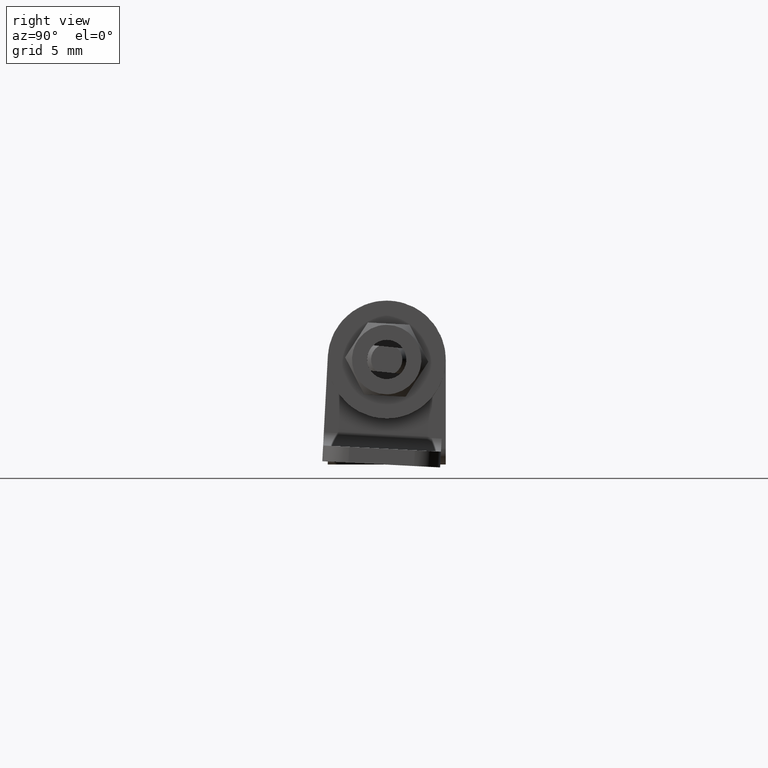
[diagram: clean part render]
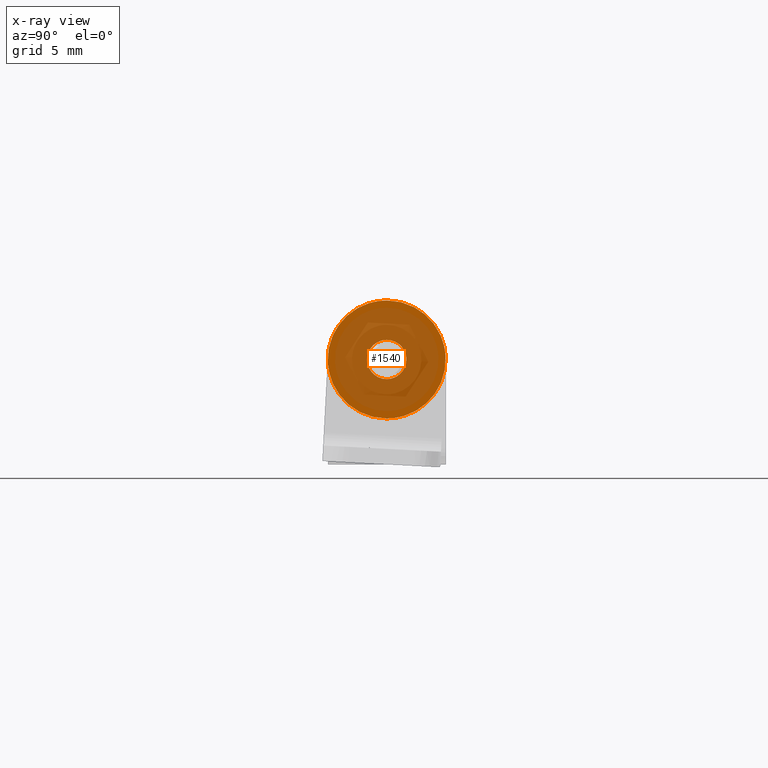
[diagram: x-ray — body ghosted, one internal face saturated and labeled with its STEP entity id]
A machine part, right view, then the same camera in x-ray: the body is ghosted and one INTERNAL B-rep face — a face not visible from any outside direction — is saturated and labeled: STEP entity #1540.
In plain terms, the highlighted face is a freeform B-spline surface patch.
Its self-contained STEP definition (entity closure, byte-faithful):
#1403=CARTESIAN_POINT('',(1.420167E-013,-4.949439242872995,4.949549982537901));
#1404=CARTESIAN_POINT('',(1.420167E-013,-4.949439242872995,-4.949550223936713));
#1405=CARTESIAN_POINT('',(1.420167E-013,4.949439081940459,4.949549982537901));
#1406=CARTESIAN_POINT('',(1.420167E-013,4.949439081940459,-4.949550223936712));
#1407=B_SPLINE_SURFACE_WITH_KNOTS('',1,1,((#1403,#1405),(#1404,#1406)),.UNSPECIFIED.,.F.,.F.,.U.,(2,2),(2,2),(0.0,9.899100206474614),(0.0,9.898878324813452),.UNSPECIFIED.);
#1408=CARTESIAN_POINT('',(1.421259E-013,-4.491606592880292,-0.274718427929563));
#1409=VERTEX_POINT('',#1408);
#1410=CARTESIAN_POINT('',(1.421085E-013,3.460812E-015,4.499999999983315));
#1411=VERTEX_POINT('',#1410);
#1412=CARTESIAN_POINT('',(1.421085E-013,-4.491606592880293,-0.274718427929564));
#1413=CARTESIAN_POINT('',(1.421085E-013,-4.499999999983312,-0.137487434855037));
#1414=CARTESIAN_POINT('',(1.421085E-013,-4.499999999983312,0.0));
#1415=CARTESIAN_POINT('',(1.421085E-013,-4.499999999983313,4.499999999983314));
#1416=CARTESIAN_POINT('',(1.421085E-013,3.460812E-015,4.499999999983315));
#1424=(BOUNDED_CURVE()B_SPLINE_CURVE(2,(#1412,#1413,#1414,#1415,#1416),.UNSPECIFIED.,.F.,.U.)B_SPLINE_CURVE_WITH_KNOTS((3,2,3),(0.739332962241057,0.750000000000000,1.0),.UNSPECIFIED.)CURVE()GEOMETRIC_REPRESENTATION_ITEM()RATIONAL_B_SPLINE_CURVE((0.976072041671248,0.987502787902314,1.0,0.707106781186547,1.0))REPRESENTATION_ITEM(''));
#1425=EDGE_CURVE('',#1409,#1411,#1424,.T.);
#1426=ORIENTED_EDGE('',*,*,#1425,.F.);
#1427=CARTESIAN_POINT('',(1.421085E-013,3.460812E-015,-4.499999999983315));
#1428=VERTEX_POINT('',#1427);
#1429=CARTESIAN_POINT('',(1.421085E-013,3.460812E-015,-4.499999999983315));
#1430=CARTESIAN_POINT('',(1.421085E-013,-4.233177301037525,-4.499999999983313));
#1431=CARTESIAN_POINT('',(1.421085E-013,-4.491606592880293,-0.274718427929564));
#1439=(BOUNDED_CURVE()B_SPLINE_CURVE(2,(#1429,#1430,#1431),.UNSPECIFIED.,.F.,.U.)B_SPLINE_CURVE_WITH_KNOTS((3,3),(0.500000000000000,0.739332962241057),.UNSPECIFIED.)CURVE()GEOMETRIC_REPRESENTATION_ITEM()RATIONAL_B_SPLINE_CURVE((1.0,0.719603993284234,0.976072041671248))REPRESENTATION_ITEM(''));
#1440=EDGE_CURVE('',#1428,#1409,#1439,.T.);
#1441=ORIENTED_EDGE('',*,*,#1440,.F.);
#1442=CARTESIAN_POINT('',(1.421259E-013,4.491606592880299,0.274718427929563));
#1443=VERTEX_POINT('',#1442);
#1444=CARTESIAN_POINT('',(1.421085E-013,4.491606592880300,0.274718427929563));
#1445=CARTESIAN_POINT('',(1.421085E-013,4.499999999983318,0.137487434855036));
#1446=CARTESIAN_POINT('',(1.421085E-013,4.499999999983318,0.0));
#1447=CARTESIAN_POINT('',(1.421085E-013,4.499999999983318,-4.499999999983314));
#1448=CARTESIAN_POINT('',(1.421085E-013,3.460812E-015,-4.499999999983315));
#1456=(BOUNDED_CURVE()B_SPLINE_CURVE(2,(#1444,#1445,#1446,#1447,#1448),.UNSPECIFIED.,.F.,.U.)B_SPLINE_CURVE_WITH_KNOTS((3,2,3),(0.239332962241057,0.250000000000000,0.500000000000000),.UNSPECIFIED.)CURVE()GEOMETRIC_REPRESENTATION_ITEM()RATIONAL_B_SPLINE_CURVE((0.976072041671249,0.987502787902314,1.0,0.707106781186547,1.0))REPRESENTATION_ITEM(''));
#1457=EDGE_CURVE('',#1443,#1428,#1456,.T.);
#1458=ORIENTED_EDGE('',*,*,#1457,.F.);
#1459=CARTESIAN_POINT('',(1.421085E-013,3.460812E-015,4.499999999983315));
#1460=CARTESIAN_POINT('',(1.421085E-013,4.233177301037533,4.499999999983316));
#1461=CARTESIAN_POINT('',(1.421085E-013,4.491606592880300,0.274718427929563));
#1469=(BOUNDED_CURVE()B_SPLINE_CURVE(2,(#1459,#1460,#1461),.UNSPECIFIED.,.F.,.U.)B_SPLINE_CURVE_WITH_KNOTS((3,3),(0.0,0.239332962241057),.UNSPECIFIED.)CURVE()GEOMETRIC_REPRESENTATION_ITEM()RATIONAL_B_SPLINE_CURVE((1.0,0.719603993284233,0.976072041671249))REPRESENTATION_ITEM(''));
#1470=EDGE_CURVE('',#1411,#1443,#1469,.T.);
#1471=ORIENTED_EDGE('',*,*,#1470,.F.);
#1472=EDGE_LOOP('',(#1426,#1441,#1458,#1471));
#1473=FACE_OUTER_BOUND('',#1472,.T.);
#1474=CARTESIAN_POINT('',(1.419249E-013,3.460812E-015,-1.499999999977804));
#1475=VERTEX_POINT('',#1474);
#1476=CARTESIAN_POINT('',(1.419126E-013,-1.497202197603667,-0.091572809413666));
#1477=VERTEX_POINT('',#1476);
#1478=CARTESIAN_POINT('',(1.419249E-013,3.460812E-015,-1.499999999977804));
#1479=CARTESIAN_POINT('',(1.419249E-013,-1.411059100231206,-1.499999999977805));
#1480=CARTESIAN_POINT('',(1.419249E-013,-1.497202197603747,-0.091572809413671));
#1488=(BOUNDED_CURVE()B_SPLINE_CURVE(2,(#1478,#1479,#1480),.UNSPECIFIED.,.F.,.U.)B_SPLINE_CURVE_WITH_KNOTS((3,3),(0.500000000000000,0.739332962228975),.UNSPECIFIED.)CURVE()GEOMETRIC_REPRESENTATION_ITEM()RATIONAL_B_SPLINE_CURVE((1.0,0.719603993298388,0.976072041645355))REPRESENTATION_ITEM(''));
#1489=EDGE_CURVE('',#1475,#1477,#1488,.T.);
#1490=ORIENTED_EDGE('',*,*,#1489,.T.);
#1491=CARTESIAN_POINT('',(1.419249E-013,3.460812E-015,1.499999999977804));
#1492=VERTEX_POINT('',#1491);
#1493=CARTESIAN_POINT('',(1.419126E-013,-1.497202197603667,-0.091572809413666));
#1494=CARTESIAN_POINT('',(1.419249E-013,-1.499999999977801,-0.045829145003734));
#1495=CARTESIAN_POINT('',(1.419249E-013,-1.499999999977801,0.0));
#1496=CARTESIAN_POINT('',(1.419249E-013,-1.499999999977801,1.499999999977805));
#1497=CARTESIAN_POINT('',(1.419249E-013,3.460812E-015,1.499999999977804));
#1505=(BOUNDED_CURVE()B_SPLINE_CURVE(2,(#1493,#1494,#1495,#1496,#1497),.UNSPECIFIED.,.F.,.U.)B_SPLINE_CURVE_WITH_KNOTS((3,2,3),(0.739332962228975,0.750000000000000,1.0),.UNSPECIFIED.)CURVE()GEOMETRIC_REPRESENTATION_ITEM()RATIONAL_B_SPLINE_CURVE((0.976072041645355,0.987502787888160,1.0,0.707106781186548,1.0))REPRESENTATION_ITEM(''));
#1506=EDGE_CURVE('',#1477,#1492,#1505,.T.);
#1507=ORIENTED_EDGE('',*,*,#1506,.T.);
#1508=CARTESIAN_POINT('',(1.419126E-013,1.497202197603674,0.091572809413666));
#1509=VERTEX_POINT('',#1508);
#1510=CARTESIAN_POINT('',(1.419249E-013,3.460812E-015,1.499999999977804));
#1511=CARTESIAN_POINT('',(1.419249E-013,1.411059100231214,1.499999999977805));
#1512=CARTESIAN_POINT('',(1.419249E-013,1.497202197603754,0.091572809413671));
#1520=(BOUNDED_CURVE()B_SPLINE_CURVE(2,(#1510,#1511,#1512),.UNSPECIFIED.,.F.,.U.)B_SPLINE_CURVE_WITH_KNOTS((3,3),(0.0,0.239332962228975),.UNSPECIFIED.)CURVE()GEOMETRIC_REPRESENTATION_ITEM()RATIONAL_B_SPLINE_CURVE((1.0,0.719603993298388,0.976072041645356))REPRESENTATION_ITEM(''));
#1521=EDGE_CURVE('',#1492,#1509,#1520,.T.);
#1522=ORIENTED_EDGE('',*,*,#1521,.T.);
#1523=CARTESIAN_POINT('',(1.419126E-013,1.497202197603674,0.091572809413666));
#1524=CARTESIAN_POINT('',(1.419249E-013,1.499999999977808,0.045829145003733));
#1525=CARTESIAN_POINT('',(1.419249E-013,1.499999999977808,0.0));
#1526=CARTESIAN_POINT('',(1.419249E-013,1.499999999977808,-1.499999999977805));
#1527=CARTESIAN_POINT('',(1.419249E-013,3.460812E-015,-1.499999999977804));
#1535=(BOUNDED_CURVE()B_SPLINE_CURVE(2,(#1523,#1524,#1525,#1526,#1527),.UNSPECIFIED.,.F.,.U.)B_SPLINE_CURVE_WITH_KNOTS((3,2,3),(0.239332962228975,0.250000000000000,0.500000000000000),.UNSPECIFIED.)CURVE()GEOMETRIC_REPRESENTATION_ITEM()RATIONAL_B_SPLINE_CURVE((0.976072041645356,0.987502787888160,1.0,0.707106781186548,1.0))REPRESENTATION_ITEM(''));
#1536=EDGE_CURVE('',#1509,#1475,#1535,.T.);
#1537=ORIENTED_EDGE('',*,*,#1536,.T.);
#1538=EDGE_LOOP('',(#1490,#1507,#1522,#1537));
#1539=FACE_BOUND('',#1538,.T.);
#1540=ADVANCED_FACE('',(#1473,#1539),#1407,.T.);